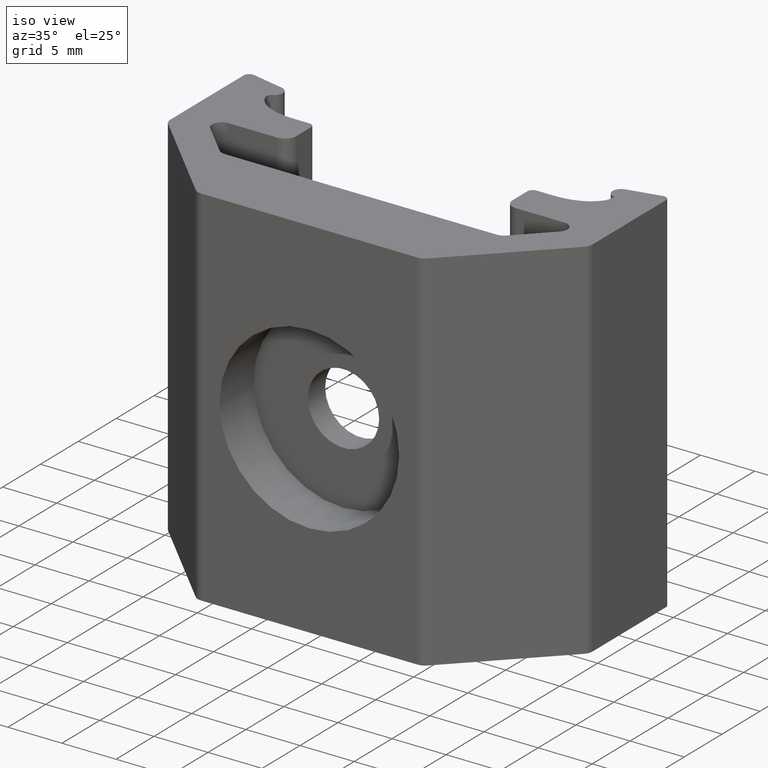
[diagram: clean part render]
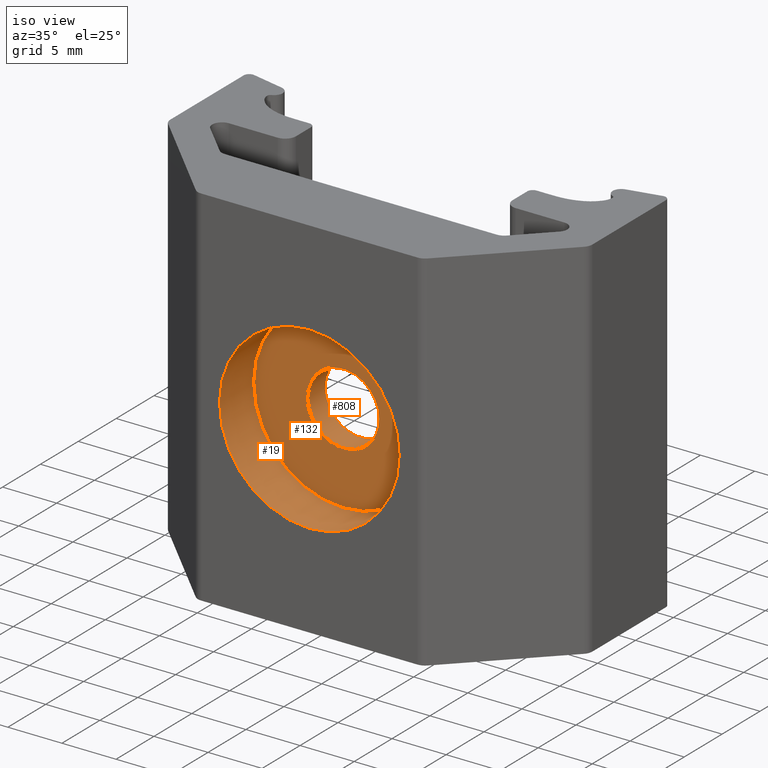
[diagram: same view with one multi-face feature highlighted, each face labeled with its STEP entity id]
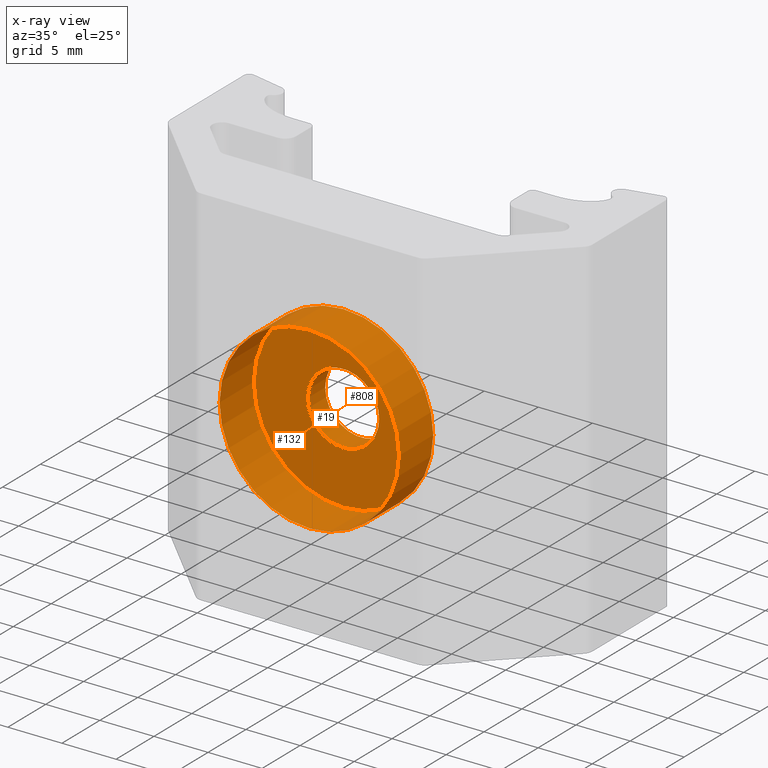
[diagram: x-ray of the same camera — body ghosted, the whole feature saturated]
A machine part, iso view. The highlighted faces form ONE feature: a stepped (counterbored) hole: 2 coaxial cylindrical walls of radii 3.3 -> 8.3 mm joined by 1 annular planar shoulder face(s). The faces share edges in the B-rep.
The next image is the same camera in x-ray: the body ghosted and the whole hole feature saturated, so the bore chain is visible through the body.
Their STEP definitions:
[1] entity #19 (Cylinder):
#19 = ADVANCED_FACE ( 'NONE', ( #658, #1538 ), #521, .F. ) ;
#120 = DIRECTION ( 'NONE',  ( 1.000000000000000000, 0.000000000000000000, 0.000000000000000000 ) ) ;
#129 = CIRCLE ( 'NONE', #676, 8.300000000000000711 ) ;
#242 = ORIENTED_EDGE ( 'NONE', *, *, #1181, .T. ) ;
#285 = DIRECTION ( 'NONE',  ( 1.000000000000000000, 0.000000000000000000, 0.000000000000000000 ) ) ;
#335 = CARTESIAN_POINT ( 'NONE',  ( 8.300000000000000711, -9.546327330299517300, 5.551115123125782702E-14 ) ) ;
#446 = VERTEX_POINT ( 'NONE', #1356 ) ;
#500 = AXIS2_PLACEMENT_3D ( 'NONE', #1130, #1012, #120 ) ;
#521 = CYLINDRICAL_SURFACE ( 'NONE', #1594, 8.300000000000000711 ) ;
#545 = CARTESIAN_POINT ( 'NONE',  ( 3.968069385157208756E-21, -9.546327330299517300, 5.551115123125782702E-14 ) ) ;
#658 = FACE_OUTER_BOUND ( 'NONE', #962, .T. ) ;
#676 = AXIS2_PLACEMENT_3D ( 'NONE', #1155, #1279, #1300 ) ;
#828 = VERTEX_POINT ( 'NONE', #335 ) ;
#872 = EDGE_LOOP ( 'NONE', ( #242 ) ) ;
#962 = EDGE_LOOP ( 'NONE', ( #1174 ) ) ;
#1012 = DIRECTION ( 'NONE',  ( 0.000000000000000000, -1.000000000000000000, 0.000000000000000000 ) ) ;
#1052 = DIRECTION ( 'NONE',  ( 0.000000000000000000, -1.000000000000000000, 2.200000000000000003E-16 ) ) ;
#1130 = CARTESIAN_POINT ( 'NONE',  ( 3.968069385157208756E-21, -5.046327330299527070, 5.551115123125782702E-14 ) ) ;
#1155 = CARTESIAN_POINT ( 'NONE',  ( 3.968069385157208756E-21, -9.546327330299517300, 5.551115123125782702E-14 ) ) ;
#1174 = ORIENTED_EDGE ( 'NONE', *, *, #1523, .F. ) ;
#1181 = EDGE_CURVE ( 'NONE', #828, #828, #129, .T. ) ;
#1210 = CIRCLE ( 'NONE', #500, 8.300000000000000711 ) ;
#1279 = DIRECTION ( 'NONE',  ( 0.000000000000000000, -1.000000000000000000, 0.000000000000000000 ) ) ;
#1300 = DIRECTION ( 'NONE',  ( 1.000000000000000000, 0.000000000000000000, 0.000000000000000000 ) ) ;
#1356 = CARTESIAN_POINT ( 'NONE',  ( 8.300000000000000711, -5.046327330299527070, 5.551115123125782702E-14 ) ) ;
#1523 = EDGE_CURVE ( 'NONE', #446, #446, #1210, .T. ) ;
#1538 = FACE_OUTER_BOUND ( 'NONE', #872, .T. ) ;
#1594 = AXIS2_PLACEMENT_3D ( 'NONE', #545, #1052, #285 ) ;
[2] entity #808 (Cylinder):
#99 = CARTESIAN_POINT ( 'NONE',  ( 3.700000396806938382E-14, -5.046327330299527070, 5.551115123125782702E-14 ) ) ;
#226 = AXIS2_PLACEMENT_3D ( 'NONE', #1525, #400, #1284 ) ;
#367 = DIRECTION ( 'NONE',  ( 1.000000000000000000, 1.051347561198065007E-15, 0.000000000000000000 ) ) ;
#400 = DIRECTION ( 'NONE',  ( 5.699999999999999930E-16, -1.000000000000000000, 7.799999999999999541E-16 ) ) ;
#417 = ORIENTED_EDGE ( 'NONE', *, *, #798, .T. ) ;
#428 = EDGE_LOOP ( 'NONE', ( #417 ) ) ;
#492 = FACE_OUTER_BOUND ( 'NONE', #428, .T. ) ;
#515 = CIRCLE ( 'NONE', #226, 3.299999999999999822 ) ;
#608 = DIRECTION ( 'NONE',  ( 1.000000000000000078E-15, -1.000000000000000000, 1.000000000000000078E-15 ) ) ;
#713 = VERTEX_POINT ( 'NONE', #979 ) ;
#740 = CARTESIAN_POINT ( 'NONE',  ( 3.744000396806938623E-14, -5.046327330299527070, 5.551115123125782702E-14 ) ) ;
#798 = EDGE_CURVE ( 'NONE', #713, #713, #1622, .T. ) ;
#808 = ADVANCED_FACE ( 'NONE', ( #1623, #492 ), #993, .F. ) ;
#855 = CARTESIAN_POINT ( 'NONE',  ( 3.300000000000035794, -2.746327330299514813, 5.551115123125782702E-14 ) ) ;
#867 = DIRECTION ( 'NONE',  ( 1.000000000000000000, 5.256737805990325036E-16, 0.000000000000000000 ) ) ;
#889 = EDGE_CURVE ( 'NONE', #1490, #1490, #515, .T. ) ;
#979 = CARTESIAN_POINT ( 'NONE',  ( 3.300000000000036682, -5.046327330299523517, 5.551115123125782702E-14 ) ) ;
#984 = AXIS2_PLACEMENT_3D ( 'NONE', #740, #1500, #867 ) ;
#993 = CYLINDRICAL_SURFACE ( 'NONE', #984, 3.299999999999999822 ) ;
#1058 = EDGE_LOOP ( 'NONE', ( #1558 ) ) ;
#1284 = DIRECTION ( 'NONE',  ( 1.000000000000000000, 5.256737805990325036E-16, 0.000000000000000000 ) ) ;
#1328 = AXIS2_PLACEMENT_3D ( 'NONE', #99, #608, #367 ) ;
#1490 = VERTEX_POINT ( 'NONE', #855 ) ;
#1500 = DIRECTION ( 'NONE',  ( 5.699999999999999930E-16, -1.000000000000000000, 7.799999999999999541E-16 ) ) ;
#1525 = CARTESIAN_POINT ( 'NONE',  ( 3.613000396806938980E-14, -2.746327330299516589, 5.551115123125782702E-14 ) ) ;
#1558 = ORIENTED_EDGE ( 'NONE', *, *, #889, .F. ) ;
#1622 = CIRCLE ( 'NONE', #1328, 3.299999999999999822 ) ;
#1623 = FACE_OUTER_BOUND ( 'NONE', #1058, .T. ) ;
[3] entity #132 (Plane):
#99 = CARTESIAN_POINT ( 'NONE',  ( 3.700000396806938382E-14, -5.046327330299527070, 5.551115123125782702E-14 ) ) ;
#120 = DIRECTION ( 'NONE',  ( 1.000000000000000000, 0.000000000000000000, 0.000000000000000000 ) ) ;
#130 = ORIENTED_EDGE ( 'NONE', *, *, #1523, .T. ) ;
#132 = ADVANCED_FACE ( 'NONE', ( #590, #222 ), #830, .F. ) ;
#191 = EDGE_LOOP ( 'NONE', ( #711 ) ) ;
#222 = FACE_OUTER_BOUND ( 'NONE', #1100, .T. ) ;
#367 = DIRECTION ( 'NONE',  ( 1.000000000000000000, 1.051347561198065007E-15, 0.000000000000000000 ) ) ;
#446 = VERTEX_POINT ( 'NONE', #1356 ) ;
#500 = AXIS2_PLACEMENT_3D ( 'NONE', #1130, #1012, #120 ) ;
#590 = FACE_BOUND ( 'NONE', #191, .T. ) ;
#608 = DIRECTION ( 'NONE',  ( 1.000000000000000078E-15, -1.000000000000000000, 1.000000000000000078E-15 ) ) ;
#711 = ORIENTED_EDGE ( 'NONE', *, *, #798, .F. ) ;
#713 = VERTEX_POINT ( 'NONE', #979 ) ;
#798 = EDGE_CURVE ( 'NONE', #713, #713, #1622, .T. ) ;
#830 = PLANE ( 'NONE',  #986 ) ;
#979 = CARTESIAN_POINT ( 'NONE',  ( 3.300000000000036682, -5.046327330299523517, 5.551115123125782702E-14 ) ) ;
#986 = AXIS2_PLACEMENT_3D ( 'NONE', #1203, #1441, #1467 ) ;
#1012 = DIRECTION ( 'NONE',  ( 0.000000000000000000, -1.000000000000000000, 0.000000000000000000 ) ) ;
#1100 = EDGE_LOOP ( 'NONE', ( #130 ) ) ;
#1130 = CARTESIAN_POINT ( 'NONE',  ( 3.968069385157208756E-21, -5.046327330299527070, 5.551115123125782702E-14 ) ) ;
#1203 = CARTESIAN_POINT ( 'NONE',  ( -3.299960319306148048E-16, -5.046327330299527070, 5.551115123125782702E-14 ) ) ;
#1210 = CIRCLE ( 'NONE', #500, 8.300000000000000711 ) ;
#1328 = AXIS2_PLACEMENT_3D ( 'NONE', #99, #608, #367 ) ;
#1356 = CARTESIAN_POINT ( 'NONE',  ( 8.300000000000000711, -5.046327330299527070, 5.551115123125782702E-14 ) ) ;
#1441 = DIRECTION ( 'NONE',  ( -5.699999999999999930E-16, 1.000000000000000000, -9.899999999999999152E-16 ) ) ;
#1467 = DIRECTION ( 'NONE',  ( 0.000000000000000000, -9.899999999999999152E-16, -1.000000000000000000 ) ) ;
#1523 = EDGE_CURVE ( 'NONE', #446, #446, #1210, .T. ) ;
#1622 = CIRCLE ( 'NONE', #1328, 3.299999999999999822 ) ;